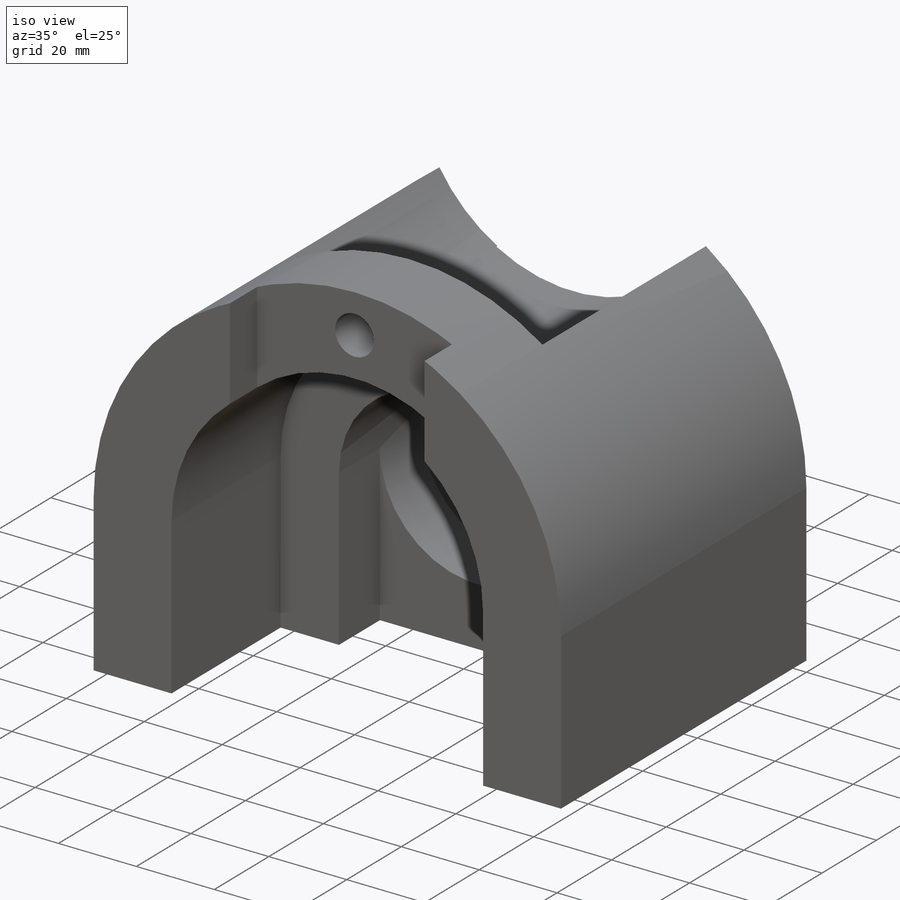
[diagram: iso view]
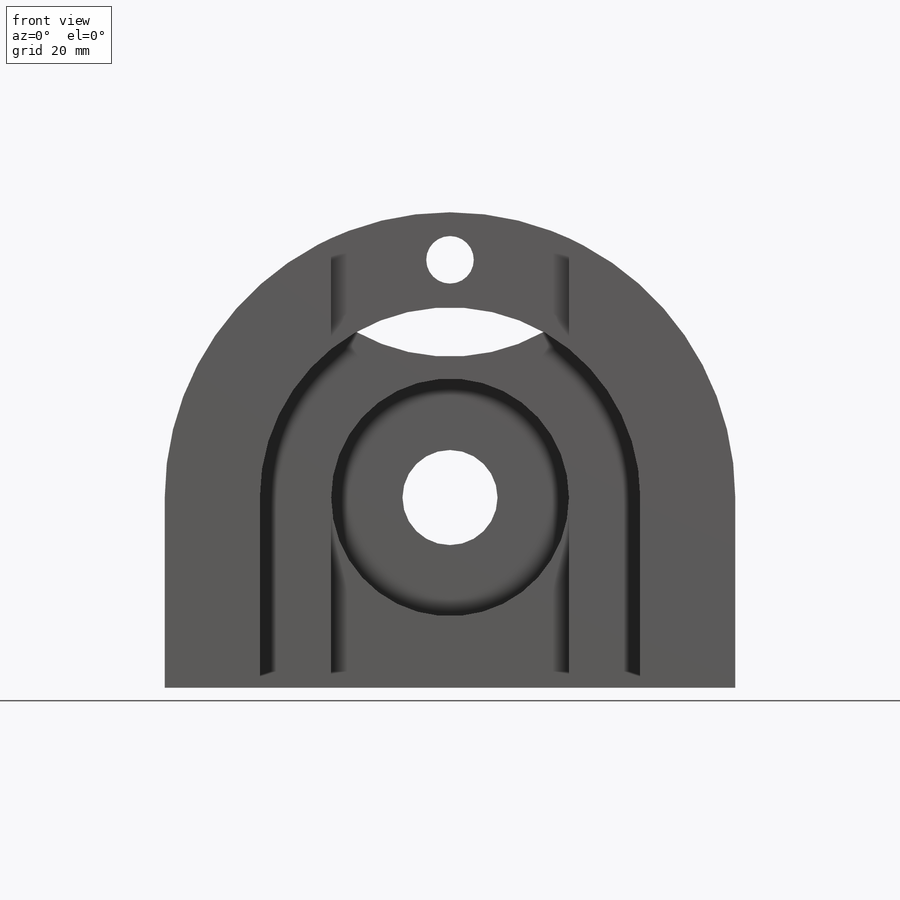
[diagram: front view]
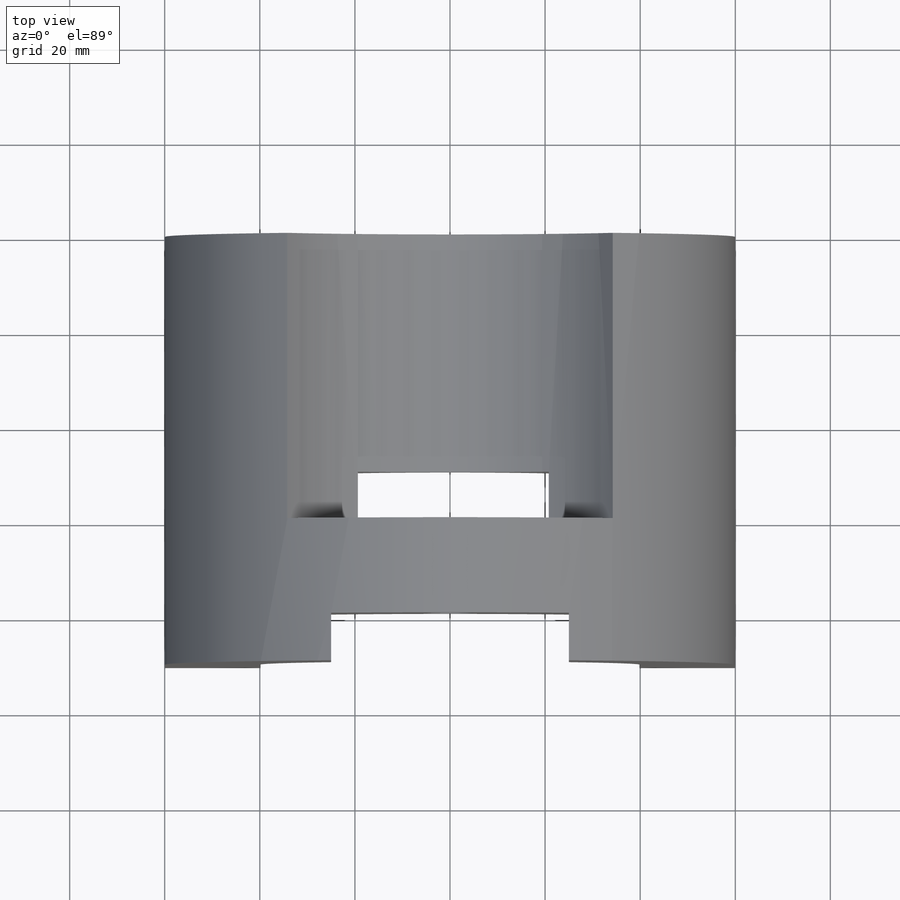
[diagram: top view]
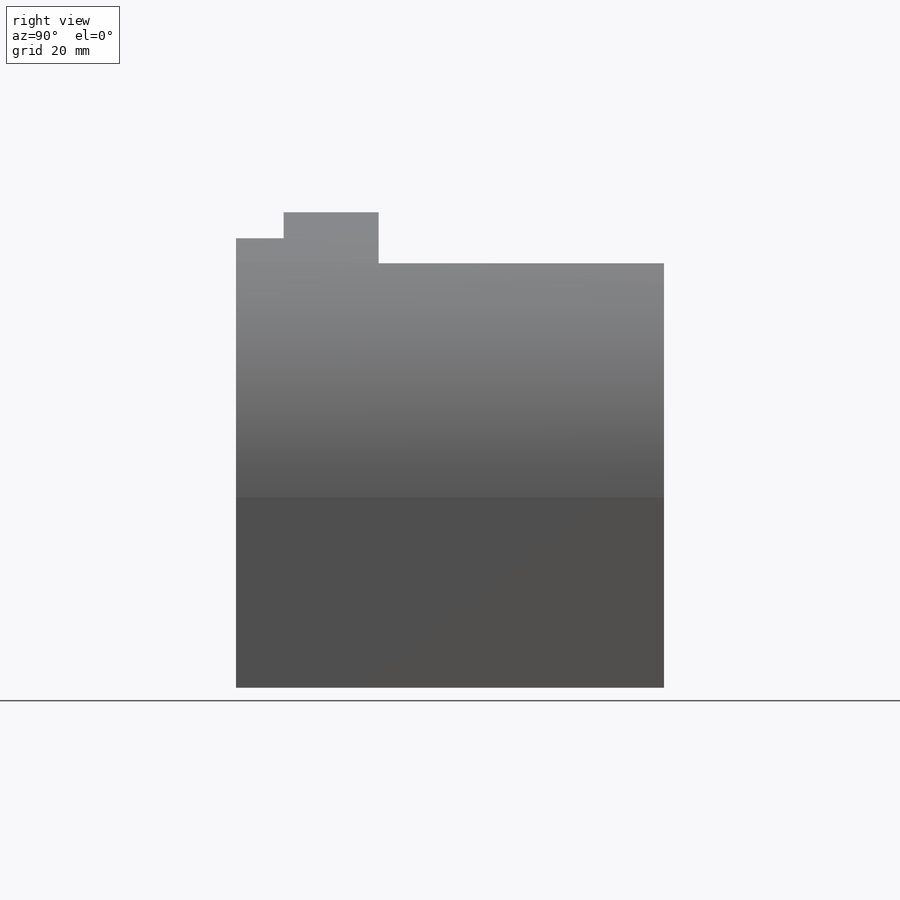
[diagram: right view]
SOLIDWORKS PART (.sldprt)
format: sldprt  version: not decoded by parser v0  size: 802,304 bytes
history: native  units: mm
features: sketch x39, cut_extrude x27, extrude x12, plane x3, material x1 (+13 scaffold rows collapsed)
feature tree (95):
  scaffold x13  (default folders/planes/origin — collapsed)
  material  "Material <not specified>"
  sketch  "Sketch1"  dims[D1=40.0mm D2=40.0mm]
  extrude  "Boss-Extrude1"  Depth=90mm
  sketch  "Sketch3"  dims[D1=20.0mm D2=40.0mm D3=40.0mm]
  cut_extrude  "Cut-Extrude2"  Depth=90mm
  sketch  "Sketch6"  dims[D1=20.0mm D2=20.0mm D3=0.0mm D4=40.0mm]
  extrude  "Boss-Extrude2"  Depth=90mm
  sketch  "Sketch7"  dims[D1=10.0mm D2=0.0mm D3=90.0mm]
  cut_extrude  "Cut-Extrude3"  Depth=90mm
  sketch  "Sketch8"  dims[D3=40.0mm D1=0.0mm D2=70.0mm]
  cut_extrude  "Cut-Extrude4"  Depth=60mm
  plane  "Plane1"  Offset=50mm
  sketch  "Sketch10"  dims[D5=60.0mm D1=25.0mm D2=25.0mm D3=32.0mm D4=32.0mm D6=0.0mm]
  cut_extrude  "Cut-Extrude5"  Depth=60mm
  plane  "Plane2"
  sketch  "Sketch12"
  extrude  "Boss-Extrude3"  Depth=10mm
  sketch  "Sketch13"
  extrude  "Boss-Extrude4"  Depth=55mm
  sketch  "Sketch14"
  cut_extrude  "Cut-Extrude6"  Depth=40mm
  sketch  "Sketch15"
  cut_extrude  "Cut-Extrude7"  Depth=106mm
  sketch  "Sketch16"  dims[D1=10.0mm D2=50.0mm]
  cut_extrude  "Cut-Extrude8"  Depth=106mm
  sketch  "Sketch17"  dims[D1=25.0mm D2=25.0mm]
  cut_extrude  "Cut-Extrude9"  Depth=70mm
  sketch  "Sketch18"  dims[D1=10.0mm]
  extrude  "Boss-Extrude6"  Depth=15mm
  sketch  "Sketch19"  dims[D1=20.0mm D2=20.0mm D3=40.0mm D4=40.0mm D5=0.0mm D6=40.0mm]
  cut_extrude  "Cut-Extrude18"  Depth=40mm
  sketch  "Sketch22"  dims[D1=0.0mm D2=~41.844001mm]
  cut_extrude  "Cut-Extrude19"  Depth=20mm
  sketch  "Sketch23"  dims[D1=0.0mm D2=~40.367694mm]
  cut_extrude  "Cut-Extrude20"  Depth=20mm
  sketch  "Sketch25"  dims[D1=50.0mm]
  extrude  "Boss-Extrude7"  Depth=40mm
  sketch  "Sketch26"  dims[D1=50.0mm]
  cut_extrude  "Cut-Extrude21"  Depth=10mm
  sketch  "Sketch27"
  cut_extrude  "Cut-Extrude22"  Depth=34mm
  sketch  "Sketch28"  dims[D1=50.0mm]
  cut_extrude  "Cut-Extrude24"  Depth=60mm
  sketch  "Sketch32"
  extrude  "Boss-Extrude10"  Depth=15mm
  sketch  "Sketch33"
  extrude  "Boss-Extrude11"  Depth=30mm
  sketch  "Sketch34"  dims[D1=~30.368553mm]
  cut_extrude  "Cut-Extrude28"  Depth=209.999mm
  sketch  "Sketch35"
  extrude  "Boss-Extrude12"  Depth=30mm
  sketch  "Sketch36"  dims[D1=50.0mm D2=35.0mm D3=0.0mm D4=10.0mm]
  cut_extrude  "Cut-Extrude29"  Depth=87mm
  sketch  "Sketch38"  dims[D1=10.0mm 50=50.0mm D2=60.0mm]
  cut_extrude  "Cut-Extrude30"  Depth=87mm
  sketch  "Sketch39"  dims[D1=20.0mm]
  extrude  "Boss-Extrude14"  Depth=60mm
  sketch  "Sketch40"  dims[D1=25.0mm D2=25.0mm]
  cut_extrude  "Cut-Extrude31"  Depth=40mm
  sketch  "Sketch41"  dims[D1=40.0mm D2=40.0mm]
  cut_extrude  "Cut-Extrude32"  Depth=20mm
  sketch  "Sketch47"  dims[D1=10.0mm D2=0.0mm D3=40.0mm D4=15.0mm]
  cut_extrude  "Cut-Extrude34"  Depth=65mm
  sketch  "Sketch48"
  extrude  "Boss-Extrude23"  Depth=20mm
  sketch  "Sketch49"  dims[D1=20.0mm]
  cut_extrude  "Cut-Extrude35"  Depth=20mm
  sketch  "Sketch50"  dims[D1=50.0mm]
  cut_extrude  "Cut-Extrude36"  Depth=60mm
  sketch  "Sketch51"  dims[D1=40.0mm D2=50.0mm D3=40.0mm]
  cut_extrude  "Cut-Extrude39"  Depth=40mm
  plane  "Plane4"  Offset=50mm
  sketch  "Sketch53"
  cut_extrude  "Cut-Extrude41"  Depth=4574mm
  sketch  "Sketch54"  dims[D1=40.0mm D2=~8.409018mm]
  extrude  "Boss-Extrude24"  Depth=20mm
  sketch  "Sketch55"  dims[c1.D5=40.0mm c1.D1=20.0mm c1.D2=20.0mm c1.D3=35.0mm c1.D4=35.0mm c2.D5=5.0mm]
  cut_extrude  "Cut-Extrude43"  [1 undecoded]
  sketch  "Sketch57"  dims[D1=40.0mm]
  cut_extrude  "Cut-Extrude47"  Depth=30mm
  sketch  "Sketch60"
  cut_extrude  "Cut-Extrude48"  Depth=5mm
decode coverage: 66 of 78 modeling features carry decoded parameters
note: ~ marks probable driven/reference dimensions
note: 1 parameter value undecoded
note: suppression state not decoded; provenance and decode notes live in map.json
